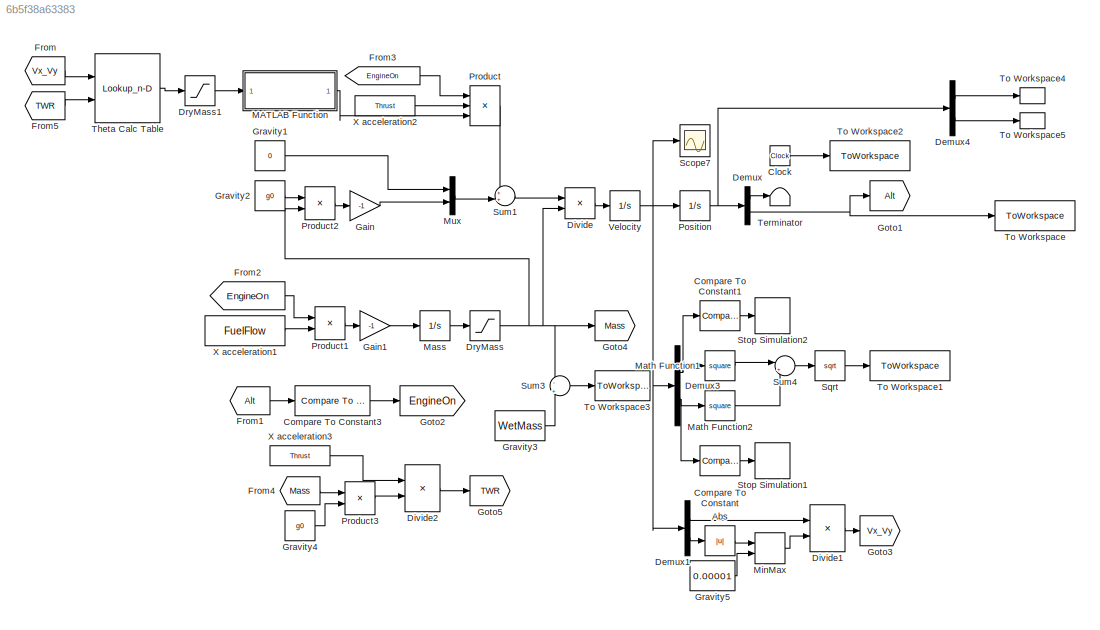
MODEL slx_6b5f38a63383
KIND model
CONFIG AbsTol = auto
CONFIG FixedStep = .1
CONFIG MaxStep = auto
CONFIG MinStep = auto
CONFIG RelTol = 1e-10
CONFIG SampleTimeConstraint = Unconstrained
CONFIG Solver = ode45
CONFIG SolverMode = Auto
CONFIG SolverName = ode45
CONFIG StartTime = 0.0
CONFIG StopTime = 10000
BLOCK [Abs] Abs
  SaturateOnIntegerOverflow = off
BLOCK [Clock] Clock
BLOCK [Reference] Compare To Constant  REF=simulink/Logic and Bit
Operations/Compare
To Constant
  OutDataTypeStr = boolean
  Ports = [1, 1]
  SourceBlock = simulink/Logic and Bit\nOperations/Compare\nTo Constant
  SourceType = Compare To Constant
  ZeroCross = on
  const = -0.01
  relop = >=
BLOCK [Reference] Compare To Constant1  REF=simulink/Logic and Bit
Operations/Compare
To Constant
  OutDataTypeStr = boolean
  Ports = [1, 1]
  SourceBlock = simulink/Logic and Bit\nOperations/Compare\nTo Constant
  SourceType = Compare To Constant
  ZeroCross = on
  const = 0.01
  relop = <=
BLOCK [Reference] Compare To Constant3  REF=simulink/Logic and Bit
Operations/Compare
To Constant
  OutDataTypeStr = boolean
  Ports = [1, 1]
  SourceBlock = simulink/Logic and Bit\nOperations/Compare\nTo Constant
  SourceType = Compare To Constant
  ZeroCross = on
  const = BurnStart
  relop = <=
BLOCK [Demux] Demux
  DisplayOption = bar
  Outputs = 2
  Ports = [1, 2]
BLOCK [Demux] Demux1
  DisplayOption = bar
  Outputs = 2
  Ports = [1, 2]
BLOCK [Demux] Demux3
  DisplayOption = bar
  Outputs = 2
  Ports = [1, 2]
BLOCK [Demux] Demux4
  DisplayOption = bar
  Outputs = 2
  Ports = [1, 2]
BLOCK [Product] Divide
  InputSameDT = off
  Inputs = */
  OutDataTypeStr = Inherit: Inherit via internal rule
  Ports = [2, 1]
  RndMeth = Floor
  SaturateOnIntegerOverflow = off
BLOCK [Product] Divide1
  InputSameDT = off
  Inputs = */
  OutDataTypeStr = Inherit: Inherit via internal rule
  Ports = [2, 1]
  RndMeth = Floor
  SaturateOnIntegerOverflow = off
BLOCK [Product] Divide2
  InputSameDT = off
  Inputs = */
  OutDataTypeStr = Inherit: Inherit via internal rule
  Ports = [2, 1]
  RndMeth = Floor
  SaturateOnIntegerOverflow = off
BLOCK [Saturate] DryMass
  InputPortMap = u0
  LowerLimit = DryMass
  Ports = [1, 1]
  UpperLimit = inf
BLOCK [Saturate] DryMass1
  InputPortMap = u0
  LowerLimit = 0
  Ports = [1, 1]
  UpperLimit = 90
BLOCK [From] From
  GotoTag = Vx_Vy
BLOCK [From] From1
  GotoTag = Alt
BLOCK [From] From2
  GotoTag = EngineOn
BLOCK [From] From3
  GotoTag = EngineOn
BLOCK [From] From4
  GotoTag = Mass
BLOCK [From] From5
  GotoTag = TWR
BLOCK [Gain] Gain
  Gain = -1
  OutDataTypeStr = Inherit: Inherit via internal rule
  ParamDataTypeStr = Inherit: Inherit via internal rule
  SaturateOnIntegerOverflow = off
BLOCK [Gain] Gain1
  Gain = -1
  OutDataTypeStr = Inherit: Inherit via internal rule
  ParamDataTypeStr = Inherit: Inherit via internal rule
  SaturateOnIntegerOverflow = off
BLOCK [Goto] Goto1
  GotoTag = Alt
BLOCK [Goto] Goto2
  GotoTag = EngineOn
BLOCK [Goto] Goto3
  GotoTag = Vx_Vy
BLOCK [Goto] Goto4
  GotoTag = Mass
BLOCK [Goto] Goto5
  GotoTag = TWR
BLOCK [Constant] Gravity1
  Value = 0
BLOCK [Constant] Gravity2
  Value = g0
BLOCK [Constant] Gravity3
  Value = WetMass
BLOCK [Constant] Gravity4
  Value = g0
BLOCK [Constant] Gravity5
  Value = 0.00001
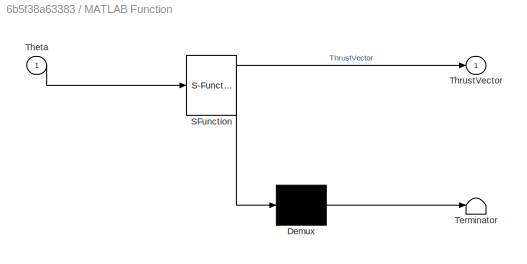
BLOCK [SubSystem] MATLAB Function
  ErrorFcn = Stateflow.Translate.translate
  PermitHierarchicalResolution = ExplicitOnly
  Ports = [1, 1]
  RequestExecContextInheritance = off
  SFBlockType = MATLAB Function
  TreatAsAtomicUnit = on
BLOCK [Demux] MATLAB Function/ Demux 
  Outputs = 1
  Ports = [1, 1]
BLOCK [S-Function] MATLAB Function/ SFunction 
  EnableBusSupport = on
  FunctionName = sf_sfun
  PortCounts = [1 2]
  Ports = [1, 2]
  Tag = Stateflow S-Function ConstantAngle 2
BLOCK [Terminator] MATLAB Function/ Terminator 
BLOCK [Inport] MATLAB Function/Theta
  IconDisplay = Port number
BLOCK [Outport] MATLAB Function/ThrustVector
  IconDisplay = Port number
BLOCK [Integrator] Mass
  InitialCondition = WetMass
  Ports = [1, 1]
BLOCK [Math] Math Function1
  Operator = square
  Ports = [1, 1]
BLOCK [Math] Math Function2
  Operator = square
  Ports = [1, 1]
BLOCK [MinMax] MinMax
  Function = max
  InputSameDT = off
  Inputs = 2
  Ports = [2, 1]
  SaturateOnIntegerOverflow = off
BLOCK [Mux] Mux
  DisplayOption = bar
  Inputs = 2
  Ports = [2, 1]
BLOCK [Integrator] Position
  InitialCondition = [0,StartingAlt]
  Ports = [1, 1]
BLOCK [Product] Product
  InputSameDT = off
  Inputs = 3
  OutDataTypeStr = Inherit: Inherit via internal rule
  Ports = [3, 1]
  RndMeth = Floor
  SaturateOnIntegerOverflow = off
BLOCK [Product] Product1
  InputSameDT = off
  OutDataTypeStr = Inherit: Inherit via internal rule
  Ports = [2, 1]
  RndMeth = Floor
  SaturateOnIntegerOverflow = off
BLOCK [Product] Product2
  InputSameDT = off
  OutDataTypeStr = Inherit: Inherit via internal rule
  Ports = [2, 1]
  RndMeth = Floor
  SaturateOnIntegerOverflow = off
BLOCK [Product] Product3
  InputSameDT = off
  OutDataTypeStr = Inherit: Inherit via internal rule
  Ports = [2, 1]
  RndMeth = Floor
  SaturateOnIntegerOverflow = off
BLOCK [Scope] Scope7
  Floating = off
  NumInputPorts = 1
  Ports = [1]
  SaveName = ScopeData7
  YMax = 0.00375
  YMin = 0.00075
BLOCK [Sqrt] Sqrt
BLOCK [Stop] Stop Simulation1
BLOCK [Stop] Stop Simulation2
BLOCK [Sum] Sum1
  IconShape = round
  InputSameDT = off
  Inputs = ++|
  OutDataTypeStr = Inherit: Inherit via internal rule
  Ports = [2, 1]
  SaturateOnIntegerOverflow = off
BLOCK [Sum] Sum3
  IconShape = round
  InputSameDT = off
  Inputs = -|+
  OutDataTypeStr = Inherit: Inherit via internal rule
  Ports = [2, 1]
  SaturateOnIntegerOverflow = off
BLOCK [Sum] Sum4
  IconShape = round
  InputSameDT = off
  Inputs = |++
  OutDataTypeStr = Inherit: Inherit via internal rule
  Ports = [2, 1]
  SaturateOnIntegerOverflow = off
BLOCK [Terminator] Terminator
BLOCK [Lookup_n-D] Theta Calc Table
  BreakpointsForDimension1 = Theta_X
  BreakpointsForDimension2 = Theta_Y
  BreakpointsForDimension3 = [5, 7]
  InternalRulePriority = Speed
  Ports = [2, 1]
  RndMeth = Simplest
  Table = Theta_Z
BLOCK [ToWorkspace] To Workspace
  FixptAsFi = on
  MaxDataPoints = 1
  Ports = [1]
  SampleTime = -1
  Save2DSignal = 3-D array (concatenate along third dimension)
  VariableName = Final_Altitude
BLOCK [ToWorkspace] To Workspace1
  FixptAsFi = on
  MaxDataPoints = 1
  Ports = [1]
  SampleTime = -1
  Save2DSignal = 3-D array (concatenate along third dimension)
  VariableName = Final_Speed
BLOCK [ToWorkspace] To Workspace2
  FixptAsFi = on
  MaxDataPoints = 1
  Ports = [1]
  SampleTime = -1
  Save2DSignal = 3-D array (concatenate along third dimension)
  VariableName = BurnTime
BLOCK [ToWorkspace] To Workspace3
  FixptAsFi = on
  MaxDataPoints = 1
  Ports = [1]
  SampleTime = -1
  Save2DSignal = 3-D array (concatenate along third dimension)
  VariableName = FuelUse
BLOCK [ToWorkspace] To Workspace4
  FixptAsFi = on
  Ports = [1]
  SampleTime = -1
  Save2DSignal = 3-D array (concatenate along third dimension)
  VariableName = X
BLOCK [ToWorkspace] To Workspace5
  FixptAsFi = on
  Ports = [1]
  SampleTime = -1
  Save2DSignal = 3-D array (concatenate along third dimension)
  VariableName = Y
BLOCK [Integrator] Velocity
  InitialCondition = [Starting_X_Speed,Starting_Y_Speed]
  Ports = [1, 1]
BLOCK [Constant] X acceleration1
  Value = FuelFlow
BLOCK [Constant] X acceleration2
  Value = Thrust
BLOCK [Constant] X acceleration3
  Value = Thrust
LINE Abs:1 -> MinMax:1
LINE Clock:1 -> To Workspace2:1
LINE Compare To Constant1:1 -> Stop Simulation2:1
LINE Compare To Constant3:1 -> Goto2:1
LINE Compare To Constant:1 -> Stop Simulation1:1
LINE Demux1:1 -> Divide1:1
LINE Demux1:2 -> Abs:1
NET Demux3:1 -> Compare To Constant1:1, Math Function1:1
NET Demux3:2 -> Compare To Constant:1, Math Function2:1
LINE Demux4:1 -> To Workspace4:1
LINE Demux4:2 -> To Workspace5:1
LINE Demux:1 -> Terminator:1
NET Demux:2 -> Goto1:1, To Workspace:1
LINE Divide1:1 -> Goto3:1
LINE Divide2:1 -> Goto5:1
LINE Divide:1 -> Velocity:1
LINE DryMass1:1 -> MATLAB Function:1
NET DryMass:1 -> Divide:2, Goto4:1, Product2:2, Sum3:1
LINE From1:1 -> Compare To Constant3:1
LINE From2:1 -> Product1:1
LINE From3:1 -> Product:1
LINE From4:1 -> Product3:1
LINE From5:1 -> Theta Calc Table:2
LINE From:1 -> Theta Calc Table:1
LINE Gain1:1 -> Mass:1
LINE Gain:1 -> Mux:2
LINE Gravity1:1 -> Mux:1
LINE Gravity2:1 -> Product2:1
LINE Gravity3:1 -> Sum3:2
LINE Gravity4:1 -> Product3:2
LINE Gravity5:1 -> MinMax:2
LINE MATLAB Function:1 -> Product:3
LINE Mass:1 -> DryMass:1
LINE Math Function1:1 -> Sum4:1
LINE Math Function2:1 -> Sum4:2
LINE MinMax:1 -> Divide1:2
LINE Mux:1 -> Sum1:2
NET Position:1 -> Demux4:1, Demux:1
LINE Product1:1 -> Gain1:1
LINE Product2:1 -> Gain:1
LINE Product3:1 -> Divide2:2
LINE Product:1 -> Sum1:1
LINE Sqrt:1 -> To Workspace1:1
LINE Sum1:1 -> Divide:1
LINE Sum3:1 -> To Workspace3:1
LINE Sum4:1 -> Sqrt:1
LINE Theta Calc Table:1 -> DryMass1:1
NET Velocity:1 -> Demux1:1, Demux3:1, Position:1, Scope7:1
LINE X acceleration1:1 -> Product1:2
LINE X acceleration2:1 -> Product:2
LINE X acceleration3:1 -> Divide2:1
note: NET lines group one-source signal fan-out (src -> all destinations, sorted); 1:1 wires keep LINE
CHART MATLAB Function states=1 transitions=1
  STATE_LABEL 'eML_blk_kernel()'
  STATE_LABEL 'SCRIPT:\nfunction ThrustVector = fcn(Theta)\n%#codegen\nX = -1*cosd(Theta);\nY = sind(Theta);\nThrustVector = [ X;Y ];'
